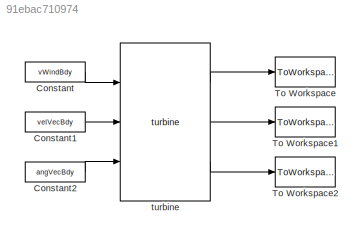
MODEL slx_91ebac710974
KIND model
CONFIG AbsTol = auto
CONFIG EnableMultiTasking = off
CONFIG FixedStep = auto
CONFIG MaxStep = auto
CONFIG MinStep = auto
CONFIG RelTol = 1e-3
CONFIG SampleTimeConstraint = Unconstrained
CONFIG SolverName = VariableStepAuto
CONFIG StartTime = 0.0
CONFIG StopTime = 0
BLOCK [Constant] Constant
  Value = vWindBdy
BLOCK [Constant] Constant1
  Value = velVecBdy
BLOCK [Constant] Constant2
  Value = angVecBdy
BLOCK [ToWorkspace] To Workspace
  FixptAsFi = on
  MaxDataPoints = inf
  Ports = [1]
  SampleTime = -1
  SaveFormat = Timeseries
  VariableName = simout
BLOCK [ToWorkspace] To Workspace1
  FixptAsFi = on
  MaxDataPoints = inf
  Ports = [1]
  SampleTime = -1
  SaveFormat = Timeseries
  VariableName = simout1
BLOCK [ToWorkspace] To Workspace2
  FixptAsFi = on
  MaxDataPoints = inf
  Ports = [1]
  SampleTime = -1
  SaveFormat = Timeseries
  VariableName = simout2
BLOCK [Reference] turbine  REF=turbine_ul/turbine  (lib defined in slx_25d3904c6ffe, slx_583544a4f476)
  Ports = [3, 3]
  SourceBlock = turbine_ul/turbine
LINE Constant1:1 -> turbine:2
LINE Constant2:1 -> turbine:3
LINE Constant:1 -> turbine:1
LINE turbine:1 -> To Workspace:1
LINE turbine:2 -> To Workspace1:1
LINE turbine:3 -> To Workspace2:1
